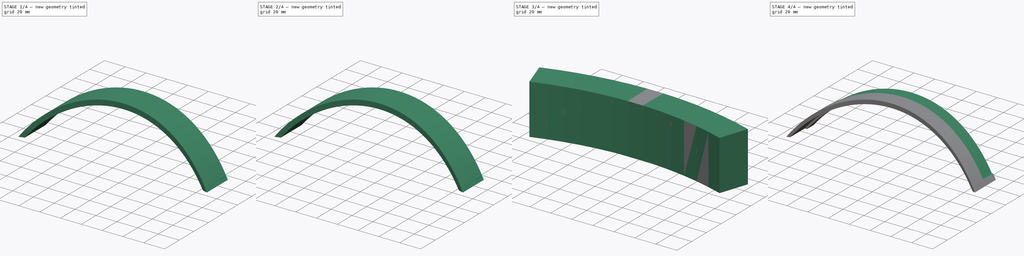
[diagram: build sequence overview — one tinted view per stage of 4, left to right]
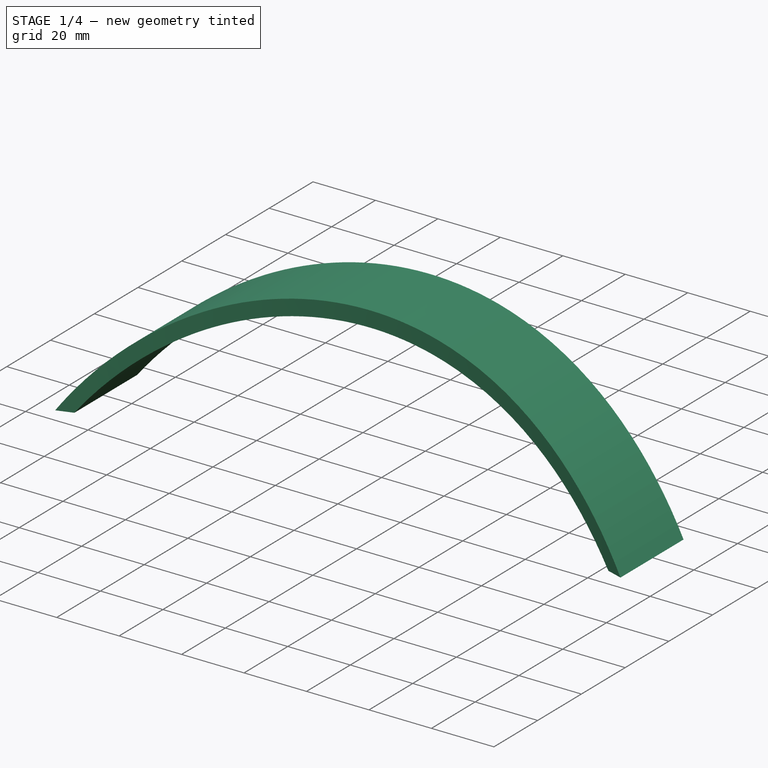
[diagram: stage 1 of 4 — iso view after this stage's code; geometry added in this stage tinted green]
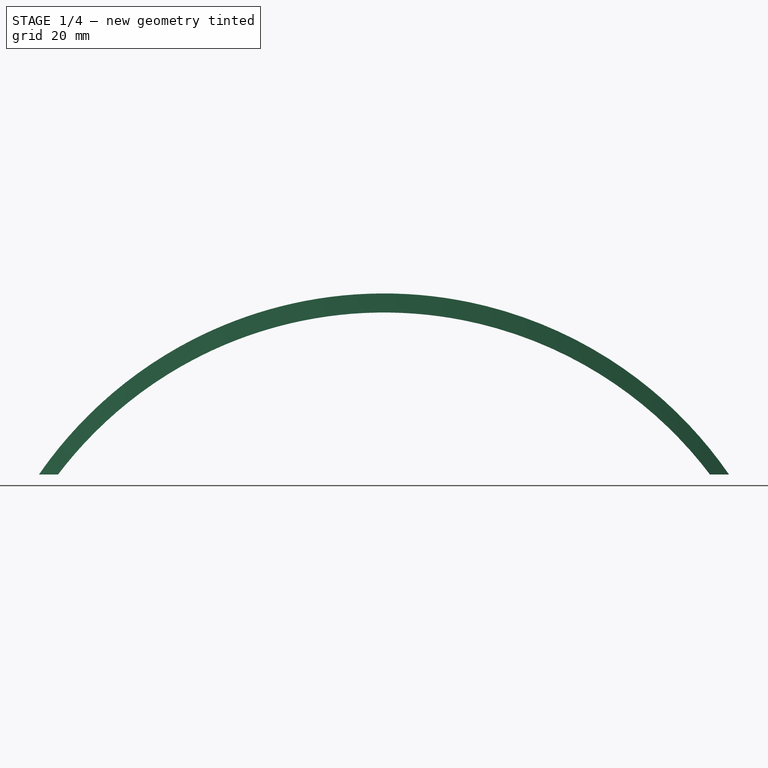
[diagram: stage 1 of 4 — front view after this stage's code; geometry added in this stage tinted green]
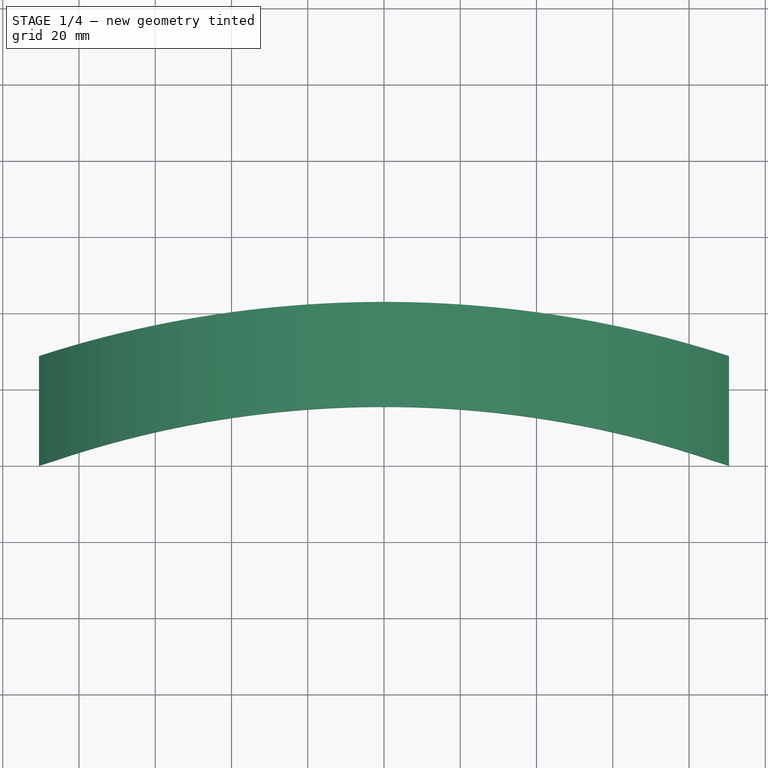
[diagram: stage 1 of 4 — top view after this stage's code; geometry added in this stage tinted green]
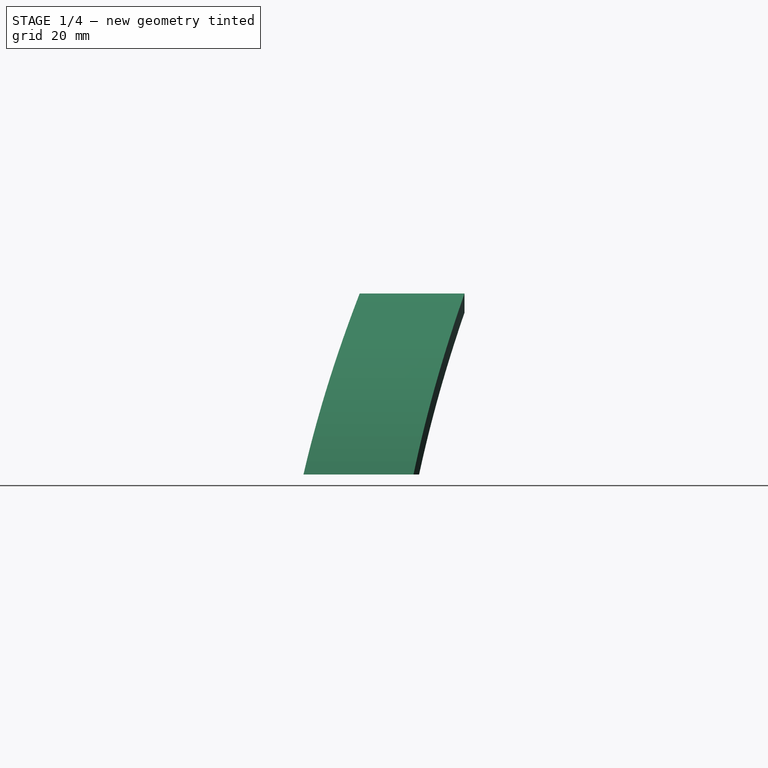
[diagram: stage 1 of 4 — right view after this stage's code; geometry added in this stage tinted green]
FCSTD DOCUMENT  (FreeCAD 1.0R39319 (Git))
Label: visoradapter_v2
License: All rights reserved
LicenseURL: https://en.wikipedia.org/wiki/All_rights_reserved
objects: Sketcher::SketchObject×9, PartDesign::Pocket×6, PartDesign::Pad×3, PartDesign::Body×3, Part::Cut×2
note: 50 computed .brp shape members not serialized (recipe doc carries the construction recipe); baked Part::Feature solids carry a one-line shape summary decoded from their .brp

FEATURE [PartDesign::Body] Body
  AllowCompound = false
  Group = -> [Sketch,Pad,Sketch001,Pocket,Sketch002,Pocket001]
  Origin = -> Origin
  Tip = -> Pocket001
FEATURE [Sketcher::SketchObject] Sketch003
  ArcFitTolerance = 1e-06
  AttachmentSupport = -> [XY_Plane001]
  FullyConstrained = false
  MakeInternals = false
  MapMode = 5
  sketch-geometry (4):
    g0: ArcOfCircle CenterX=-0.000509837 CenterY=-270.259 CenterZ=0 NormalX=0 NormalY=0 NormalZ=1 AngleXU=0 Radius=285.01 StartAngle=1.24766 EndAngle=1.89393
    g1: ArcOfCircle CenterX=-0.000509787 CenterY=-270.259 CenterZ=0 NormalX=0 NormalY=0 NormalZ=1 AngleXU=0 Radius=312.51 StartAngle=1.24766 EndAngle=1.89396
    g2: LineSegment StartX=90.5015 StartY=0 StartZ=0 EndX=99.2338 EndY=26.0767 EndZ=0
    g3: LineSegment StartX=-90.5025 StartY=0 StartZ=0 EndX=-99.2431 EndY=26.074 EndZ=0
  constraints (9):
    c: PointOnObject(g0,g-1)
    c: PointOnObject(g0,g-1)
    c: Angle(g1) = 0.646295
    c: Radius(g0) = 285.01
    c: Radius(g1) = 312.51
    c: Coincident(g2,g0)
    c: Coincident(g2,g1)
    c: Coincident(g3,g0)
    c: Coincident(g3,g1)
FEATURE [PartDesign::Pad] Pad001
  Direction = (0,0,1)
  Length = 47.5
  Length2 = 10
  Profile = -> Sketch003
  ReferenceAxis = -> Sketch003 [N_Axis]
  Refine = true
  Suppressed = false
  Type = 0
FEATURE [Sketcher::SketchObject] Sketch004
  ArcFitTolerance = 1e-06
  AttachmentSupport = -> [XZ_Plane001]
  FullyConstrained = true
  MakeInternals = false
  MapMode = 5
  Placement = pos=(0,0,0) rot=(1,0,0;1.5708rad)
  sketch-geometry (3):
    g0: LineSegment StartX=0 StartY=0 StartZ=0 EndX=-85.5 EndY=2.84e-14 EndZ=0
    g1: LineSegment StartX=0 StartY=0 StartZ=0 EndX=85.5 EndY=1.42e-14 EndZ=0
    g2: ArcOfCircle CenterX=4e-16 CenterY=-64.7481 CenterZ=0 NormalX=0 NormalY=0 NormalZ=1 AngleXU=0 Radius=107.25 StartAngle=0.648149 EndAngle=2.49344
  constraints (9):
    c: Distance(g0) = 85.5
    c: Coincident(g0,g-1)
    c: PointOnObject(g0,g-1)
    c: Distance(g1) = 85.5
    c: Coincident(g1,g0)
    c: PointOnObject(g1,g-1)
    c: Coincident(g2,g0)
    c: Coincident(g2,g1)
    c: Radius(g2) = 107.25
FEATURE [PartDesign::Pocket] Pocket002
  BaseFeature = -> Pad001
  Direction = (0,1,-2e-16)
  Length = 67
  Length2 = 5
  Profile = -> Sketch004
  ReferenceAxis = -> Sketch004 [N_Axis]
  Refine = true
  Suppressed = false
  Type = 0
FEATURE [Sketcher::SketchObject] Sketch005
  ArcFitTolerance = 1e-06
  AttachmentSupport = -> [XZ_Plane001]
  FullyConstrained = true
  MakeInternals = false
  MapMode = 5
  Placement = pos=(0,0,0) rot=(1,0,0;1.5708rad)
  sketch-geometry (6):
    g0: ArcOfCircle CenterX=1.7549e-12 CenterY=-62.4632 CenterZ=0 NormalX=0 NormalY=0 NormalZ=1 AngleXU=0 Radius=109.963 StartAngle=0.604119 EndAngle=2.53747
    g1: LineSegment StartX=-90.5 StartY=-1.7693e-12 StartZ=0 EndX=-105.5 EndY=0 EndZ=0
    g2: LineSegment StartX=-105.5 StartY=0 StartZ=0 EndX=-105.5 EndY=50 EndZ=0
    g3: LineSegment StartX=-105.5 StartY=50 StartZ=0 EndX=104.5 EndY=50 EndZ=0
    g4: LineSegment StartX=104.5 StartY=50 StartZ=0 EndX=104.5 EndY=0 EndZ=0
    g5: LineSegment StartX=90.5 StartY=-3.553e-13 StartZ=0 EndX=104.5 EndY=0 EndZ=0
  constraints (17):
    c: PointOnObject(g0,g-1)
    c: PointOnObject(g0,g-1)
    c: Block(g0)
    c: Distance(g1) = 15
    c: Coincident(g1,g0)
    c: PointOnObject(g1,g-1)
    c: Distance(g2) = 50
    c: Coincident(g2,g1)
    c: Vertical(g2)
    c: Distance(g3) = 210
    c: Coincident(g3,g2)
    c: Horizontal(g3)
    c: Coincident(g4,g3)
    c: PointOnObject(g4,g-1)
    c: Vertical(g4)
    c: Coincident(g5,g0)
    c: Coincident(g5,g4)
FEATURE [PartDesign::Pocket] Pocket003
  BaseFeature = -> Pocket002
  Direction = (0,1,-2e-16)
  Length = 50
  Length2 = 5
  Profile = -> Sketch005
  ReferenceAxis = -> Sketch005 [N_Axis]
  Refine = true
  Suppressed = false
  Type = 0
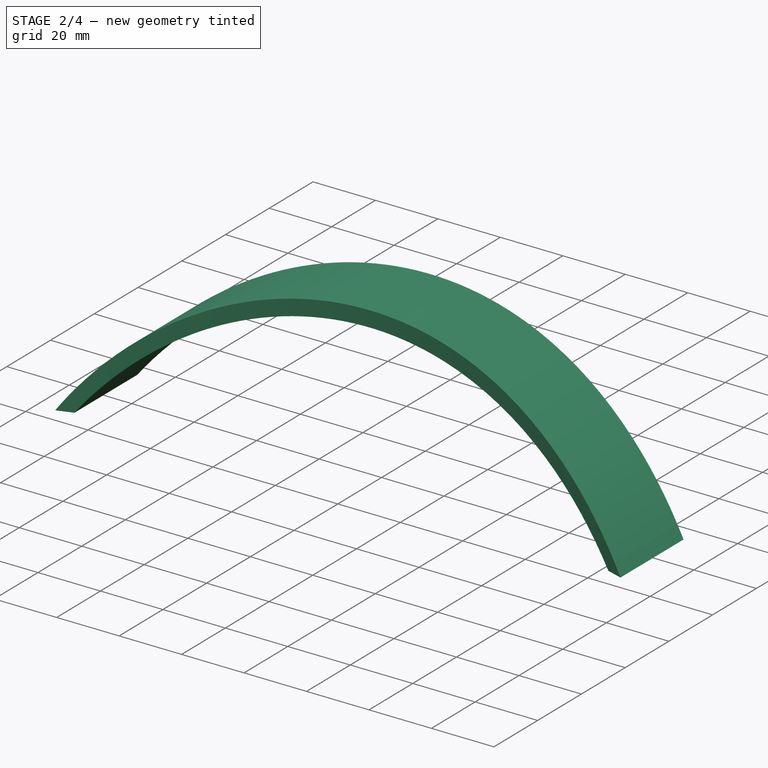
[diagram: stage 2 of 4 — iso view after this stage's code; geometry added in this stage tinted green]
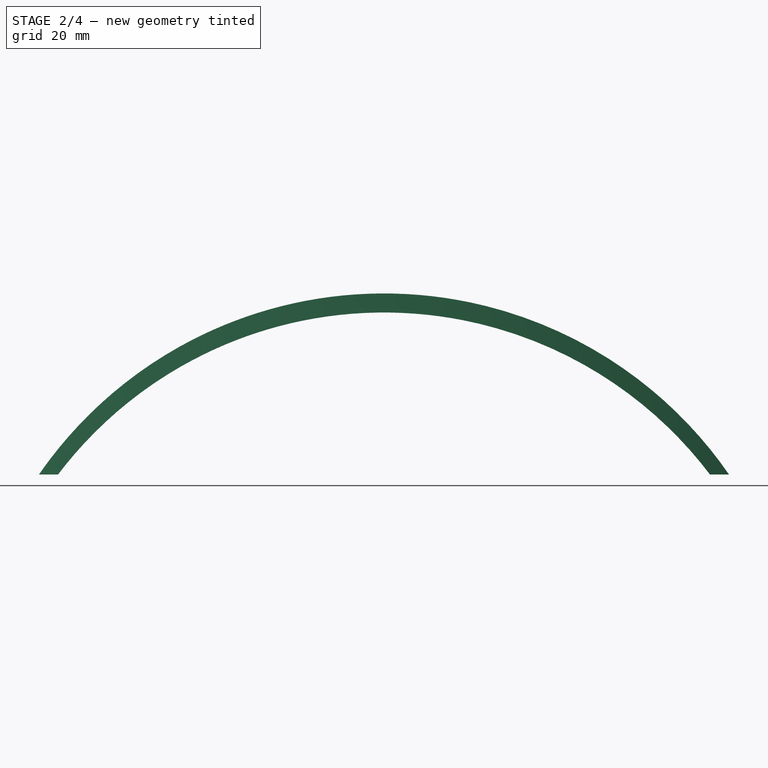
[diagram: stage 2 of 4 — front view after this stage's code; geometry added in this stage tinted green]
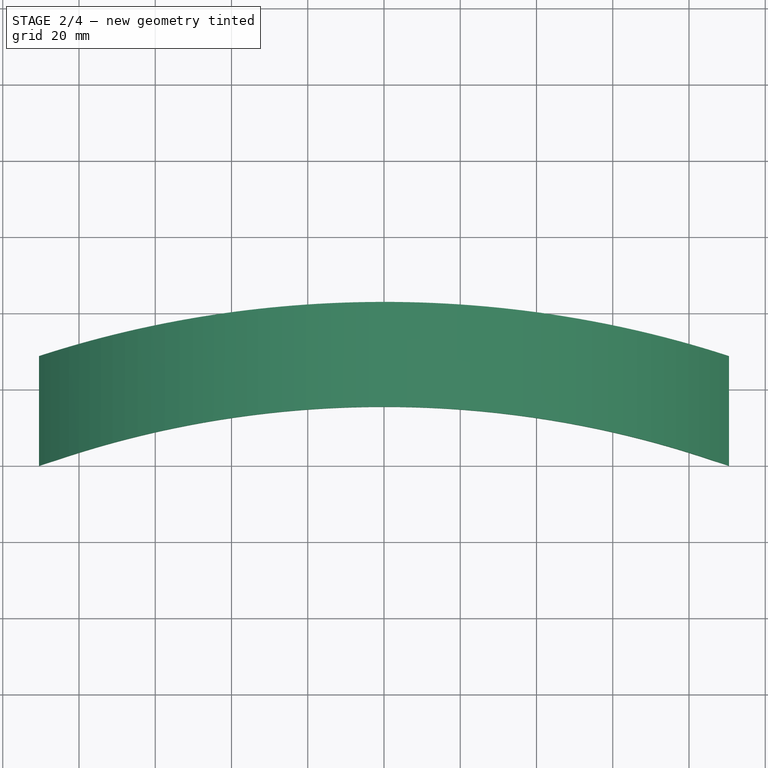
[diagram: stage 2 of 4 — top view after this stage's code; geometry added in this stage tinted green]
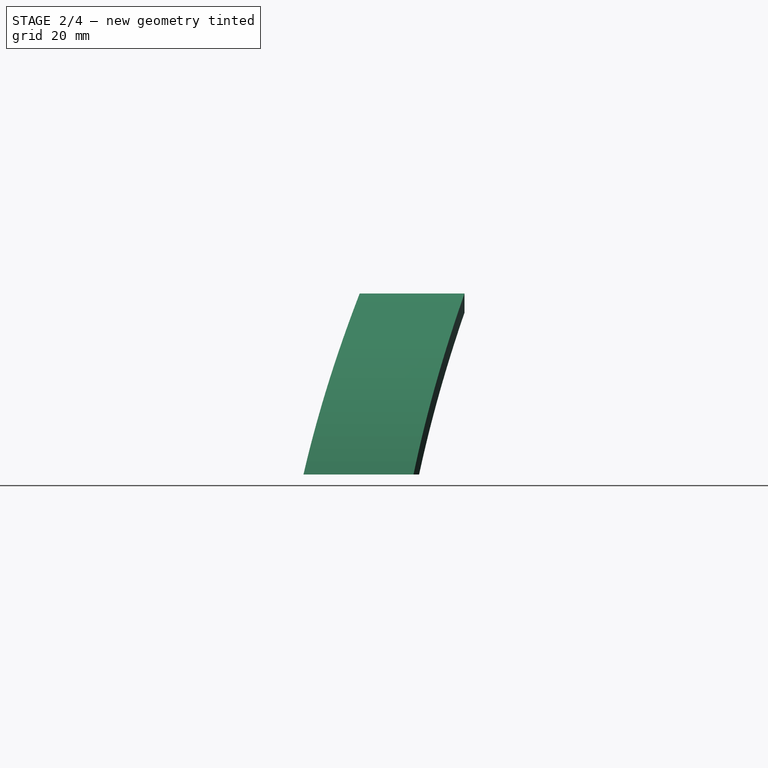
[diagram: stage 2 of 4 — right view after this stage's code; geometry added in this stage tinted green]
FEATURE [Sketcher::SketchObject] Sketch
  ArcFitTolerance = 1e-06
  AttachmentSupport = -> [XY_Plane]
  FullyConstrained = false
  MakeInternals = false
  MapMode = 5
  sketch-geometry (4):
    g0: ArcOfCircle CenterX=-0.000509787 CenterY=-270.259 CenterZ=0 NormalX=0 NormalY=0 NormalZ=1 AngleXU=0 Radius=285.01 StartAngle=1.24766 EndAngle=1.89393
    g1: ArcOfCircle CenterX=-0.000509787 CenterY=-270.259 CenterZ=0 NormalX=0 NormalY=0 NormalZ=1 AngleXU=0 Radius=312.51 StartAngle=1.24766 EndAngle=1.89396
    g2: LineSegment StartX=90.5015 StartY=-5.68e-14 StartZ=0 EndX=99.2338 EndY=26.0767 EndZ=0
    g3: LineSegment StartX=-90.5025 StartY=0 StartZ=0 EndX=-99.2431 EndY=26.074 EndZ=0
  constraints (9):
    c: PointOnObject(g0,g-1)
    c: PointOnObject(g0,g-1)
    c: Angle(g1) = 0.646295
    c: Radius(g0) = 285.01
    c: Radius(g1) = 312.51
    c: Coincident(g2,g0)
    c: Coincident(g2,g1)
    c: Coincident(g3,g0)
    c: Coincident(g3,g1)
FEATURE [PartDesign::Pad] Pad
  Direction = (0,0,1)
  Length = 47.5
  Length2 = 10
  Profile = -> Sketch
  ReferenceAxis = -> Sketch [N_Axis]
  Refine = true
  Suppressed = false
  Type = 0
FEATURE [Sketcher::SketchObject] Sketch001
  ArcFitTolerance = 1e-06
  AttachmentSupport = -> [XZ_Plane]
  FullyConstrained = true
  MakeInternals = false
  MapMode = 5
  Placement = pos=(0,0,0) rot=(1,0,0;1.5708rad)
  sketch-geometry (3):
    g0: LineSegment StartX=0 StartY=0 StartZ=0 EndX=-85.5 EndY=2.84e-14 EndZ=0
    g1: LineSegment StartX=0 StartY=0 StartZ=0 EndX=85.5 EndY=0 EndZ=0
    g2: ArcOfCircle CenterX=4e-16 CenterY=-64.7481 CenterZ=0 NormalX=0 NormalY=0 NormalZ=1 AngleXU=0 Radius=107.25 StartAngle=0.648149 EndAngle=2.49344
  constraints (9):
    c: Distance(g0) = 85.5
    c: Coincident(g0,g-1)
    c: PointOnObject(g0,g-1)
    c: Distance(g1) = 85.5
    c: Coincident(g1,g0)
    c: PointOnObject(g1,g-1)
    c: Coincident(g2,g0)
    c: Coincident(g2,g1)
    c: Radius(g2) = 107.25
FEATURE [PartDesign::Pocket] Pocket
  BaseFeature = -> Pad
  Direction = (0,1,-2e-16)
  Length = 67
  Length2 = 5
  Profile = -> Sketch001
  ReferenceAxis = -> Sketch001 [N_Axis]
  Refine = true
  Suppressed = false
  Type = 0
FEATURE [Sketcher::SketchObject] Sketch002
  ArcFitTolerance = 1e-06
  AttachmentSupport = -> [XZ_Plane]
  FullyConstrained = true
  MakeInternals = false
  MapMode = 5
  Placement = pos=(0,0,0) rot=(1,0,0;1.5708rad)
  sketch-geometry (6):
    g0: ArcOfCircle CenterX=1.7549e-12 CenterY=-62.4632 CenterZ=0 NormalX=0 NormalY=0 NormalZ=1 AngleXU=0 Radius=109.963 StartAngle=0.604119 EndAngle=2.53747
    g1: LineSegment StartX=-90.5 StartY=-1.7693e-12 StartZ=0 EndX=-105.5 EndY=0 EndZ=0
    g2: LineSegment StartX=-105.5 StartY=0 StartZ=0 EndX=-105.5 EndY=50 EndZ=0
    g3: LineSegment StartX=-105.5 StartY=50 StartZ=0 EndX=104.5 EndY=50 EndZ=0
    g4: LineSegment StartX=104.5 StartY=50 StartZ=0 EndX=104.5 EndY=0 EndZ=0
    g5: LineSegment StartX=90.5 StartY=-3.553e-13 StartZ=0 EndX=104.5 EndY=0 EndZ=0
  constraints (17):
    c: PointOnObject(g0,g-1)
    c: PointOnObject(g0,g-1)
    c: Block(g0)
    c: Distance(g1) = 15
    c: Coincident(g1,g0)
    c: PointOnObject(g1,g-1)
    c: Distance(g2) = 50
    c: Coincident(g2,g1)
    c: Vertical(g2)
    c: Distance(g3) = 210
    c: Coincident(g3,g2)
    c: Horizontal(g3)
    c: Coincident(g4,g3)
    c: PointOnObject(g4,g-1)
    c: Vertical(g4)
    c: Coincident(g5,g0)
    c: Coincident(g5,g4)
FEATURE [PartDesign::Pocket] Pocket001
  BaseFeature = -> Pocket
  Direction = (0,1,-2e-16)
  Length = 50
  Length2 = 5
  Profile = -> Sketch002
  ReferenceAxis = -> Sketch002 [N_Axis]
  Refine = true
  Suppressed = false
  Type = 0
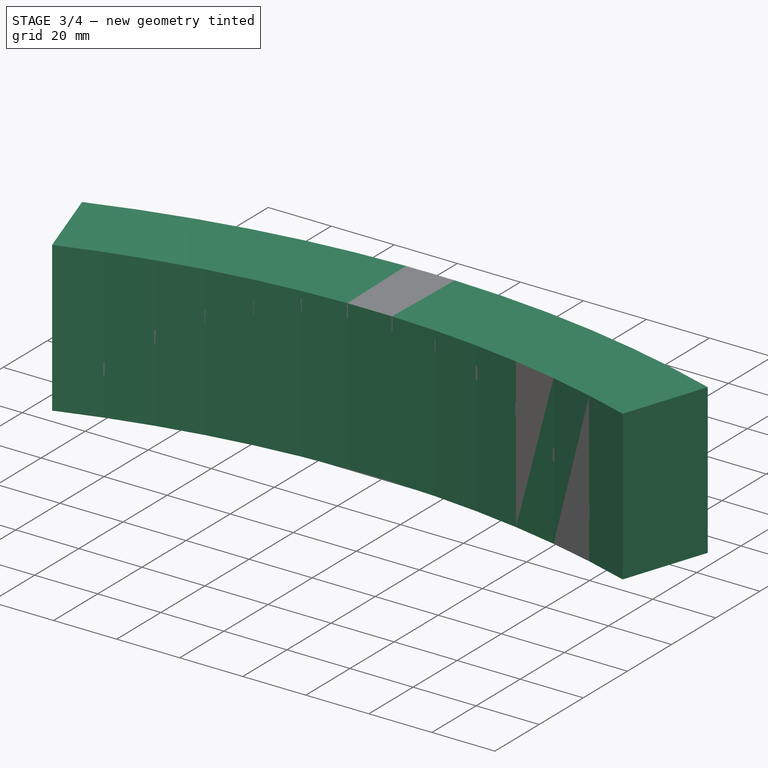
[diagram: stage 3 of 4 — iso view after this stage's code; geometry added in this stage tinted green]
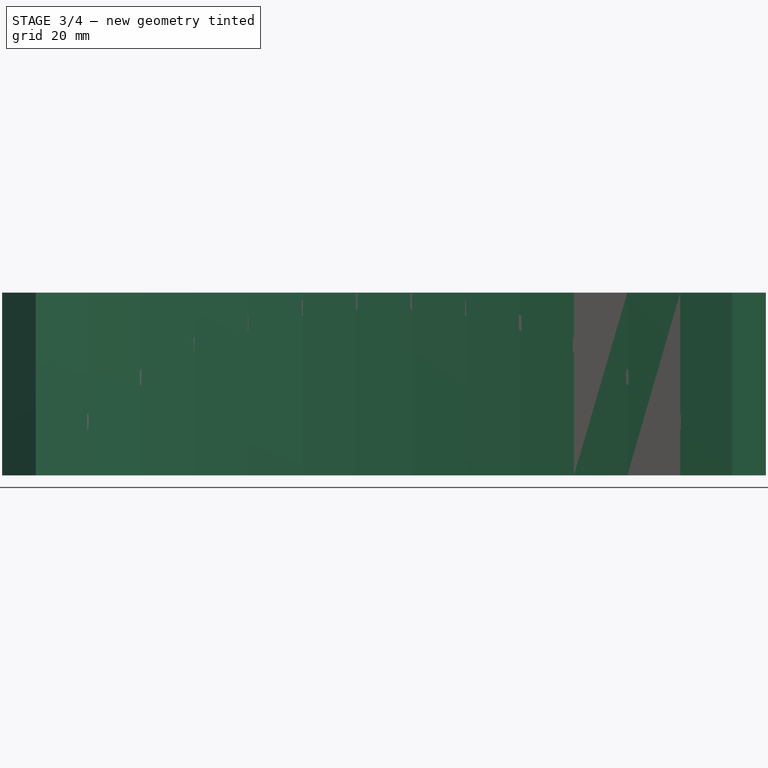
[diagram: stage 3 of 4 — front view after this stage's code; geometry added in this stage tinted green]
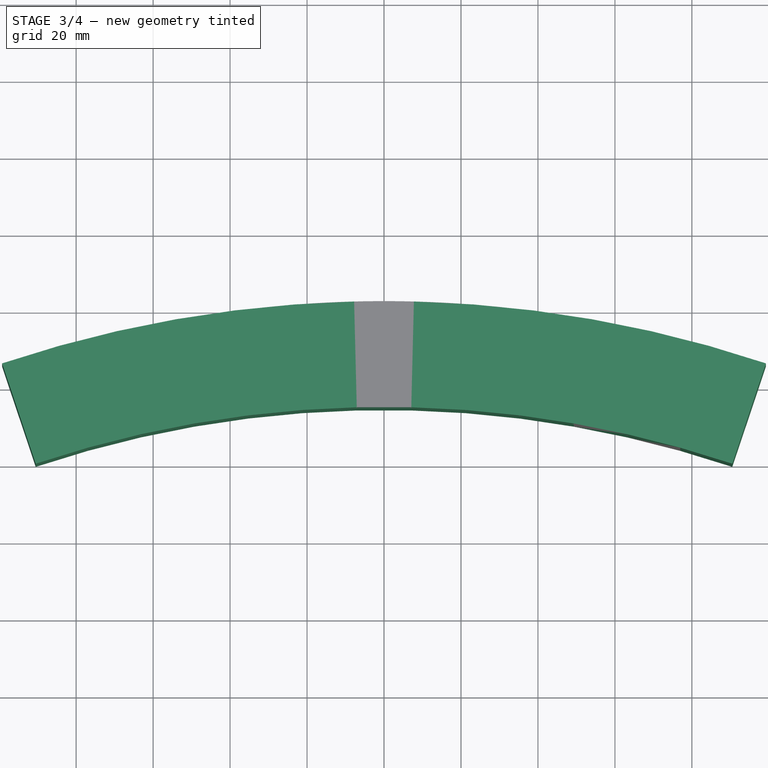
[diagram: stage 3 of 4 — top view after this stage's code; geometry added in this stage tinted green]
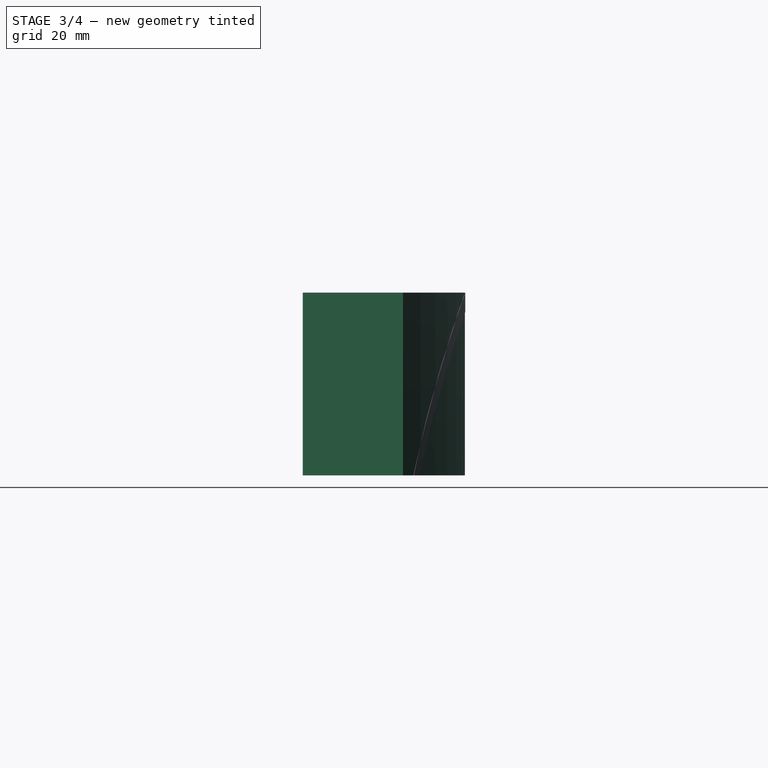
[diagram: stage 3 of 4 — right view after this stage's code; geometry added in this stage tinted green]
FEATURE [PartDesign::Body] Body001
  AllowCompound = false
  Group = -> [Sketch003,Pad001,Sketch004,Pocket002,Sketch005,Pocket003]
  Origin = -> Origin001
  Placement = pos=(0,-9,-4) rot=(0,0,1;0rad)
  Tip = -> Pocket003
FEATURE [Sketcher::SketchObject] Sketch006
  ArcFitTolerance = 1e-06
  AttachmentSupport = -> [XY_Plane002]
  FullyConstrained = false
  MakeInternals = false
  MapMode = 5
  sketch-geometry (4):
    g0: ArcOfCircle CenterX=-0.000509787 CenterY=-270.259 CenterZ=0 NormalX=0 NormalY=0 NormalZ=1 AngleXU=0 Radius=285.01 StartAngle=1.24766 EndAngle=1.89393
    g1: ArcOfCircle CenterX=-0.000509787 CenterY=-270.259 CenterZ=0 NormalX=0 NormalY=0 NormalZ=1 AngleXU=0 Radius=312.51 StartAngle=1.24766 EndAngle=1.89396
    g2: LineSegment StartX=90.5015 StartY=-5.68e-14 StartZ=0 EndX=99.2338 EndY=26.0767 EndZ=0
    g3: LineSegment StartX=-90.5025 StartY=0 StartZ=0 EndX=-99.2431 EndY=26.074 EndZ=0
  constraints (9):
    c: PointOnObject(g0,g-1)
    c: PointOnObject(g0,g-1)
    c: Angle(g1) = 0.646295
    c: Radius(g0) = 285.01
    c: Radius(g1) = 312.51
    c: Coincident(g2,g0)
    c: Coincident(g2,g1)
    c: Coincident(g3,g0)
    c: Coincident(g3,g1)
FEATURE [PartDesign::Pad] Pad002
  Direction = (0,0,1)
  Length = 47.5
  Length2 = 10
  Profile = -> Sketch006
  ReferenceAxis = -> Sketch006 [N_Axis]
  Refine = true
  Suppressed = false
  Type = 0
FEATURE [PartDesign::Body] Body002
  AllowCompound = false
  Group = -> [Sketch006,Pad002,Sketch007,Pocket004,Sketch008,Pocket005]
  Origin = -> Origin002
  Placement = pos=(0,15,4) rot=(0,0,1;0rad)
  Tip = -> Pocket005
FEATURE [Part::Cut] Cut
  Base = -> Body
  Refine = true
  Tool = -> Body001
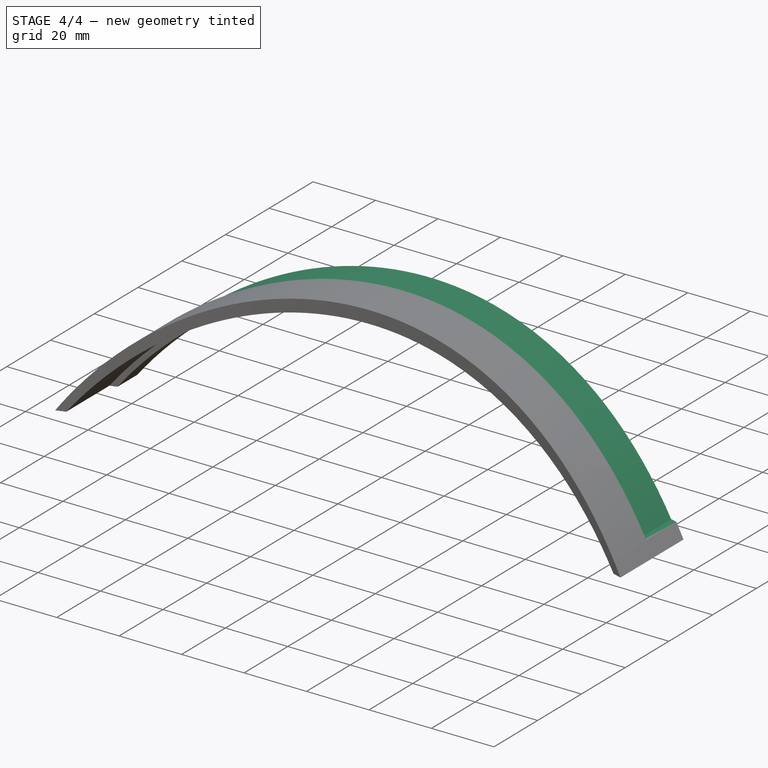
[diagram: stage 4 of 4 — iso view after this stage's code; geometry added in this stage tinted green]
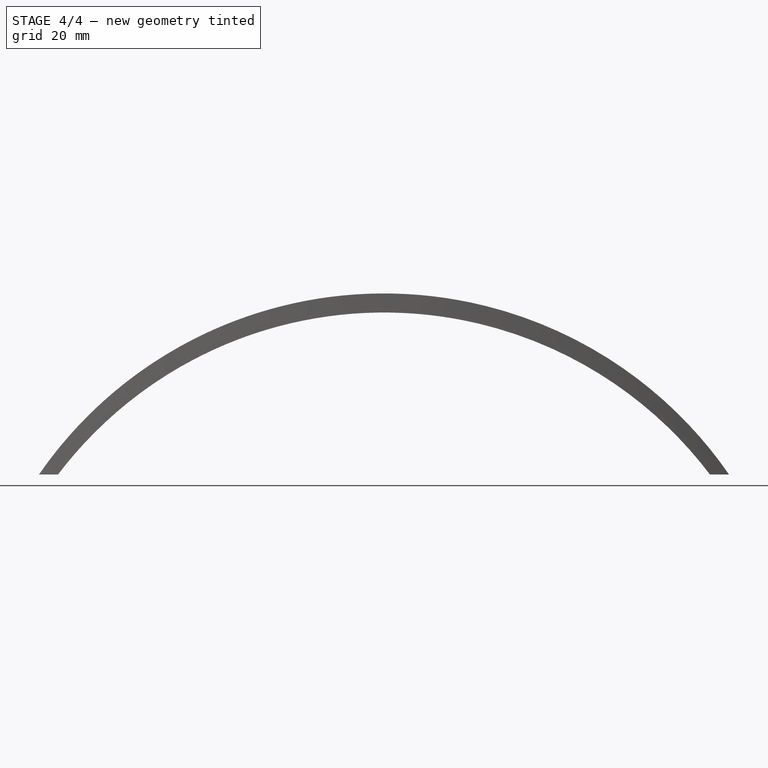
[diagram: stage 4 of 4 — front view after this stage's code; geometry added in this stage tinted green]
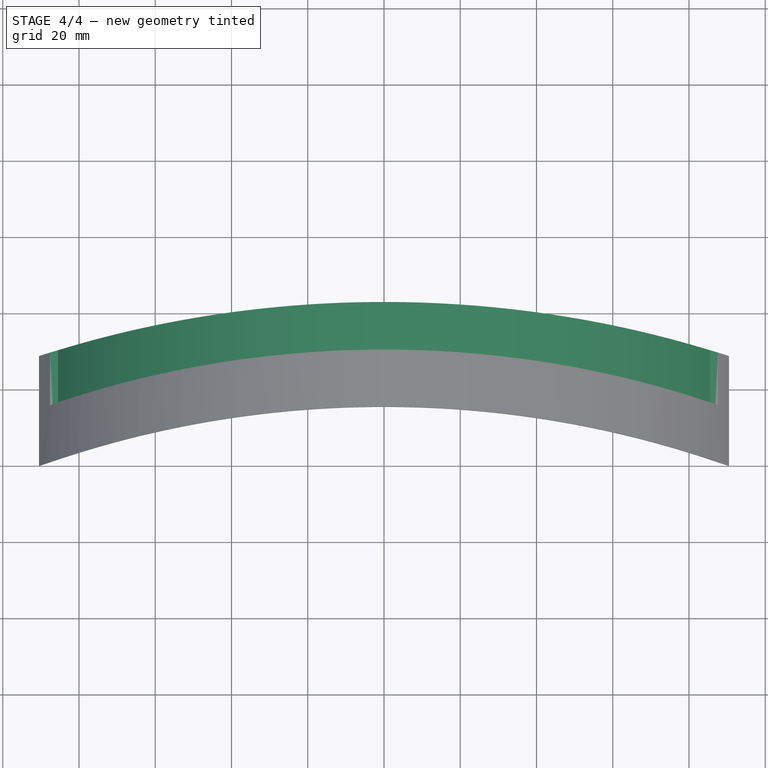
[diagram: stage 4 of 4 — top view after this stage's code; geometry added in this stage tinted green]
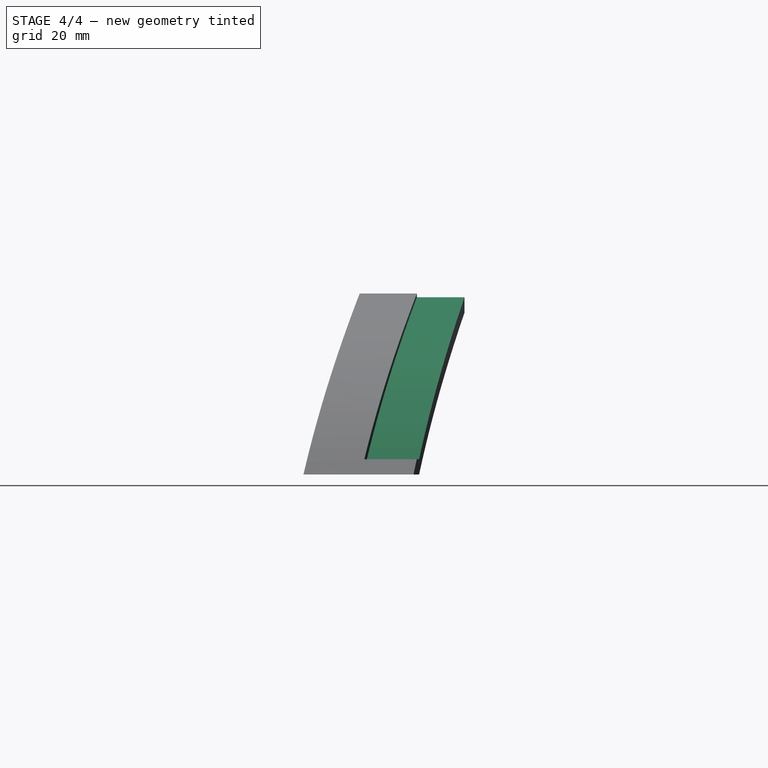
[diagram: stage 4 of 4 — right view after this stage's code; geometry added in this stage tinted green]
FEATURE [Sketcher::SketchObject] Sketch007
  ArcFitTolerance = 1e-06
  AttachmentSupport = -> [XZ_Plane002]
  FullyConstrained = true
  MakeInternals = false
  MapMode = 5
  Placement = pos=(0,0,0) rot=(1,0,0;1.5708rad)
  sketch-geometry (3):
    g0: LineSegment StartX=0 StartY=0 StartZ=0 EndX=-85.5 EndY=2.84e-14 EndZ=0
    g1: LineSegment StartX=0 StartY=0 StartZ=0 EndX=85.5 EndY=1.42e-14 EndZ=0
    g2: ArcOfCircle CenterX=4e-16 CenterY=-64.7481 CenterZ=0 NormalX=0 NormalY=0 NormalZ=1 AngleXU=0 Radius=107.25 StartAngle=0.648149 EndAngle=2.49344
  constraints (9):
    c: Distance(g0) = 85.5
    c: Coincident(g0,g-1)
    c: PointOnObject(g0,g-1)
    c: Distance(g1) = 85.5
    c: Coincident(g1,g0)
    c: PointOnObject(g1,g-1)
    c: Coincident(g2,g0)
    c: Coincident(g2,g1)
    c: Radius(g2) = 107.25
FEATURE [PartDesign::Pocket] Pocket004
  BaseFeature = -> Pad002
  Direction = (0,1,-2e-16)
  Length = 67
  Length2 = 5
  Profile = -> Sketch007
  ReferenceAxis = -> Sketch007 [N_Axis]
  Refine = true
  Suppressed = false
  Type = 0
FEATURE [Sketcher::SketchObject] Sketch008
  ArcFitTolerance = 1e-06
  AttachmentSupport = -> [XZ_Plane002]
  FullyConstrained = true
  MakeInternals = false
  MapMode = 5
  Placement = pos=(0,0,0) rot=(1,0,0;1.5708rad)
  sketch-geometry (6):
    g0: ArcOfCircle CenterX=1.7549e-12 CenterY=-62.4632 CenterZ=0 NormalX=0 NormalY=0 NormalZ=1 AngleXU=0 Radius=109.963 StartAngle=0.604119 EndAngle=2.53747
    g1: LineSegment StartX=-90.5 StartY=-1.7693e-12 StartZ=0 EndX=-105.5 EndY=0 EndZ=0
    g2: LineSegment StartX=-105.5 StartY=0 StartZ=0 EndX=-105.5 EndY=50 EndZ=0
    g3: LineSegment StartX=-105.5 StartY=50 StartZ=0 EndX=104.5 EndY=50 EndZ=0
    g4: LineSegment StartX=104.5 StartY=50 StartZ=0 EndX=104.5 EndY=0 EndZ=0
    g5: LineSegment StartX=90.5 StartY=-3.553e-13 StartZ=0 EndX=104.5 EndY=0 EndZ=0
  constraints (17):
    c: PointOnObject(g0,g-1)
    c: PointOnObject(g0,g-1)
    c: Block(g0)
    c: Distance(g1) = 15
    c: Coincident(g1,g0)
    c: PointOnObject(g1,g-1)
    c: Distance(g2) = 50
    c: Coincident(g2,g1)
    c: Vertical(g2)
    c: Distance(g3) = 210
    c: Coincident(g3,g2)
    c: Horizontal(g3)
    c: Coincident(g4,g3)
    c: PointOnObject(g4,g-1)
    c: Vertical(g4)
    c: Coincident(g5,g0)
    c: Coincident(g5,g4)
FEATURE [PartDesign::Pocket] Pocket005
  BaseFeature = -> Pocket004
  Direction = (0,1,-2e-16)
  Length = 50
  Length2 = 5
  Profile = -> Sketch008
  ReferenceAxis = -> Sketch008 [N_Axis]
  Refine = true
  Suppressed = false
  Type = 0
FEATURE [Part::Cut] Cut001
  Base = -> Cut
  Refine = true
  Tool = -> Body002
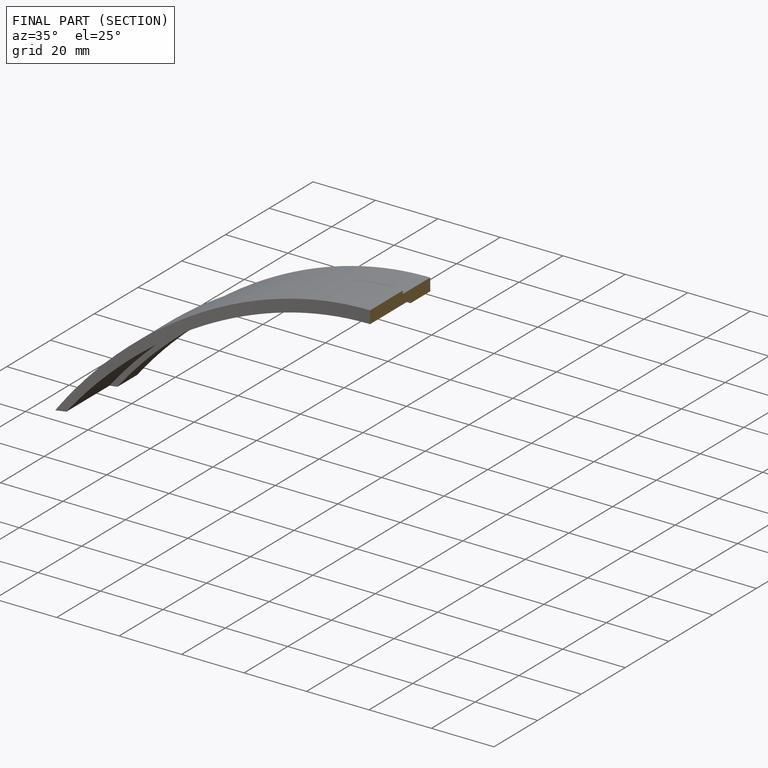
[diagram: finished part — half-section view (interior)]
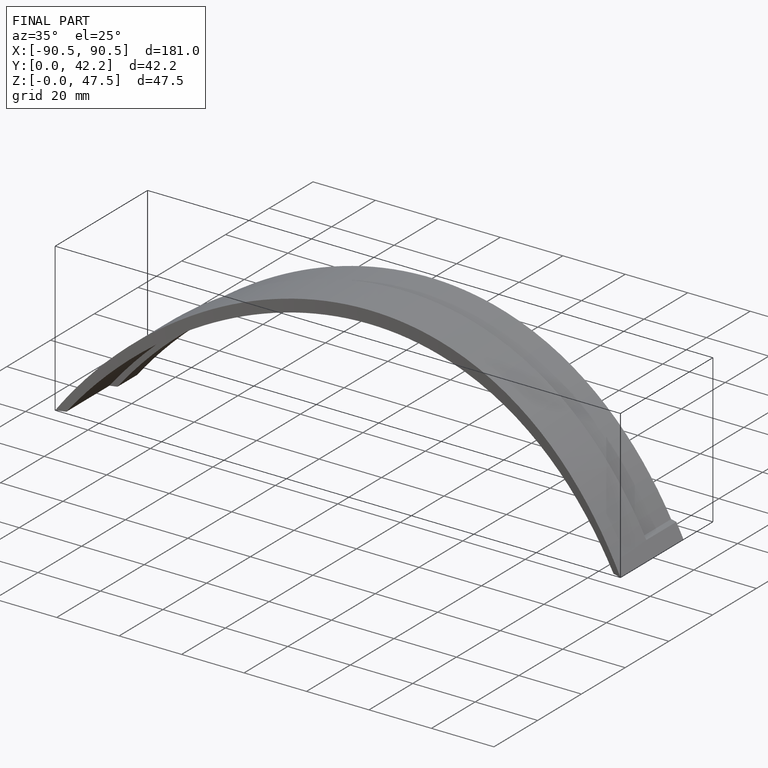
[diagram: finished part — iso view with bounding-box wireframe]
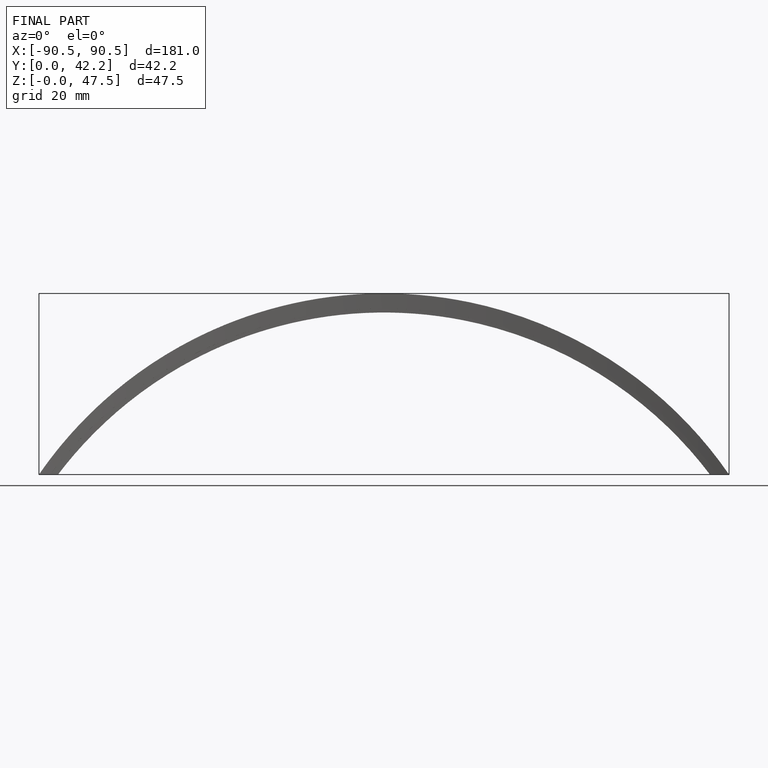
[diagram: finished part — front view with bounding-box wireframe]
